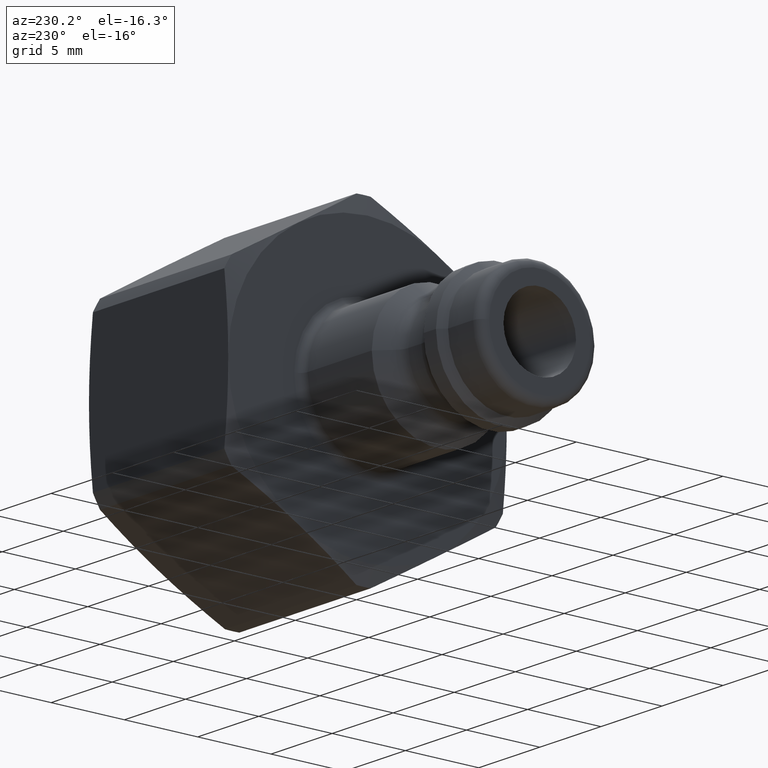
[diagram: clean part render]
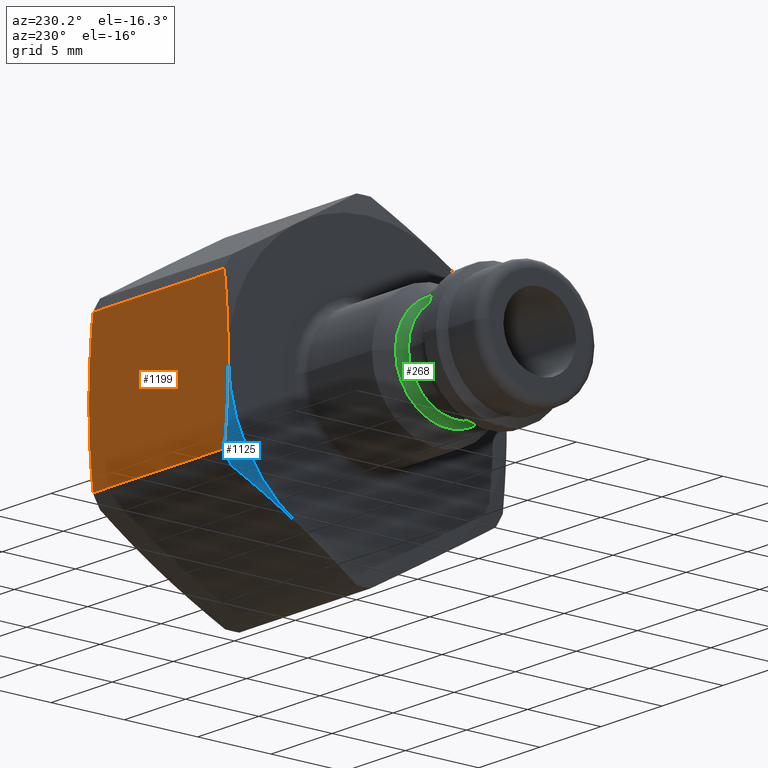
[diagram: same view with three faces highlighted in distinct colors, each labeled with its STEP entity id]
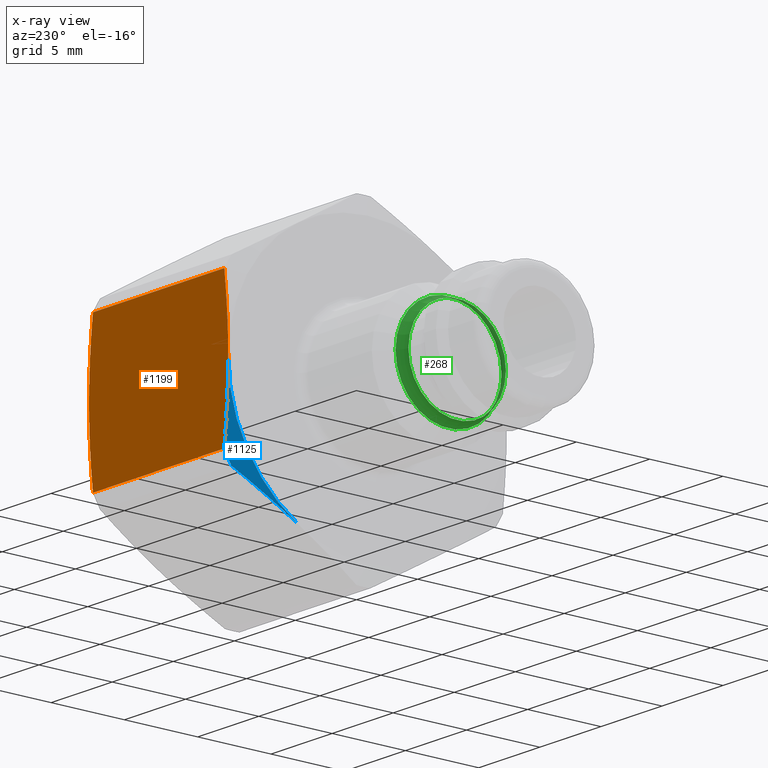
[diagram: x-ray of the same camera — body ghosted, the three highlighted faces saturated]
A machine part, auxiliary view with three faces highlighted in distinct colors.
The next image is the same camera in x-ray (body ghosted, the three faces saturated) — at least one of them is partly hidden behind the body in this view.
Their STEP definitions:

[orange] entity #1199 — the highlighted planar face has unit normal (0, -1, 0).
#101=CARTESIAN_POINT('',(25.500000000000004,9.5,0.0));
#102=VERTEX_POINT('',#101);
#402=CARTESIAN_POINT('',(14.100000000000001,9.5,0.0));
#403=VERTEX_POINT('',#402);
#869=CARTESIAN_POINT('',(25.178460969082657,9.500000000000002,4.923413450036466));
#870=VERTEX_POINT('',#869);
#871=CARTESIAN_POINT('',(25.5,9.500000000000002,0.0));
#872=CARTESIAN_POINT('',(25.5,9.500000000000002,2.315466721551811));
#873=CARTESIAN_POINT('',(25.178460969082657,9.500000000000002,4.923413450036447));
#881=(BOUNDED_CURVE()B_SPLINE_CURVE(2,(#871,#872,#873),.UNSPECIFIED.,.F.,.U.)B_SPLINE_CURVE_WITH_KNOTS((3,3),(0.493628243022412,0.987256486044824),.UNSPECIFIED.)CURVE()GEOMETRIC_REPRESENTATION_ITEM()RATIONAL_B_SPLINE_CURVE((1.0,1.031095482841895,1.0))REPRESENTATION_ITEM(''));
#882=EDGE_CURVE('',#102,#870,#881,.T.);
#954=CARTESIAN_POINT('',(25.178460969082657,9.500000000000002,-4.923413450036466));
#955=VERTEX_POINT('',#954);
#963=CARTESIAN_POINT('',(25.178460969082657,9.500000000000002,-4.923413450036447));
#964=CARTESIAN_POINT('',(25.5,9.500000000000002,-2.315466721551811));
#965=CARTESIAN_POINT('',(25.5,9.500000000000002,0.0));
#973=(BOUNDED_CURVE()B_SPLINE_CURVE(2,(#963,#964,#965),.UNSPECIFIED.,.F.,.U.)B_SPLINE_CURVE_WITH_KNOTS((3,3),(0.0,0.493628243022412),.UNSPECIFIED.)CURVE()GEOMETRIC_REPRESENTATION_ITEM()RATIONAL_B_SPLINE_CURVE((1.0,1.031095482841895,1.0))REPRESENTATION_ITEM(''));
#974=EDGE_CURVE('',#955,#102,#973,.T.);
#1004=CARTESIAN_POINT('',(14.421539030917344,9.5,-4.923413450036465));
#1005=VERTEX_POINT('',#1004);
#1013=CARTESIAN_POINT('',(14.421539030917344,9.5,-4.923413450036463));
#1014=DIRECTION('',(1.0,0.0,0.0));
#1015=VECTOR('',#1014,10.756921938165313);
#1016=LINE('',#1013,#1015);
#1017=EDGE_CURVE('',#1005,#955,#1016,.T.);
#1030=CARTESIAN_POINT('',(14.421539030917344,9.5,4.923413450036465));
#1031=VERTEX_POINT('',#1030);
#1032=CARTESIAN_POINT('',(25.178460969082657,9.5,4.923413450036463));
#1033=DIRECTION('',(-1.0,0.0,0.0));
#1034=VECTOR('',#1033,10.756921938165313);
#1035=LINE('',#1032,#1034);
#1036=EDGE_CURVE('',#870,#1031,#1035,.T.);
#1109=CARTESIAN_POINT('',(14.100000000000001,9.5,0.0));
#1110=CARTESIAN_POINT('',(14.1,9.5,-2.315466721551818));
#1111=CARTESIAN_POINT('',(14.421539030917348,9.5,-4.923413450036457));
#1119=(BOUNDED_CURVE()B_SPLINE_CURVE(2,(#1109,#1110,#1111),.UNSPECIFIED.,.F.,.U.)B_SPLINE_CURVE_WITH_KNOTS((3,3),(0.493628243022413,0.987256486044826),.UNSPECIFIED.)CURVE()GEOMETRIC_REPRESENTATION_ITEM()RATIONAL_B_SPLINE_CURVE((1.0,1.031095482841844,1.0))REPRESENTATION_ITEM(''));
#1120=EDGE_CURVE('',#403,#1005,#1119,.T.);
#1133=CARTESIAN_POINT('',(14.421539030917348,9.5,4.923413450036457));
#1134=CARTESIAN_POINT('',(14.100000000000003,9.5,2.315466721551818));
#1135=CARTESIAN_POINT('',(14.100000000000001,9.5,0.0));
#1143=(BOUNDED_CURVE()B_SPLINE_CURVE(2,(#1133,#1134,#1135),.UNSPECIFIED.,.F.,.U.)B_SPLINE_CURVE_WITH_KNOTS((3,3),(0.0,0.493628243022413),.UNSPECIFIED.)CURVE()GEOMETRIC_REPRESENTATION_ITEM()RATIONAL_B_SPLINE_CURVE((1.0,1.031095482841844,1.0))REPRESENTATION_ITEM(''));
#1144=EDGE_CURVE('',#1031,#403,#1143,.T.);
#1186=CARTESIAN_POINT('',(27.350283426595773,9.500000000000002,0.0));
#1187=DIRECTION('',(0.0,-1.0,0.0));
#1188=DIRECTION('',(0.0,0.0,-1.0));
#1189=AXIS2_PLACEMENT_3D('',#1186,#1187,#1188);
#1190=PLANE('',#1189);
#1191=ORIENTED_EDGE('',*,*,#1144,.F.);
#1192=ORIENTED_EDGE('',*,*,#1036,.F.);
#1193=ORIENTED_EDGE('',*,*,#882,.F.);
#1194=ORIENTED_EDGE('',*,*,#974,.F.);
#1195=ORIENTED_EDGE('',*,*,#1017,.F.);
#1196=ORIENTED_EDGE('',*,*,#1120,.F.);
#1197=EDGE_LOOP('',(#1191,#1192,#1193,#1194,#1195,#1196));
#1198=FACE_OUTER_BOUND('',#1197,.T.);
#1199=ADVANCED_FACE('',(#1198),#1190,.F.);

[blue] entity #1125 — the highlighted conical surface has half-angle 75 deg.
#402=CARTESIAN_POINT('',(14.100000000000001,9.5,0.0));
#403=VERTEX_POINT('',#402);
#413=CARTESIAN_POINT('',(14.1,4.749999999999993,-8.227241335952172));
#414=VERTEX_POINT('',#413);
#415=CARTESIAN_POINT('',(14.100000000000001,0.0,0.0));
#416=DIRECTION('',(1.0,0.0,0.0));
#417=DIRECTION('',(0.0,1.0,0.0));
#418=AXIS2_PLACEMENT_3D('',#415,#416,#417);
#419=CIRCLE('',#418,9.5);
#420=EDGE_CURVE('',#414,#403,#419,.T.);
#467=CARTESIAN_POINT('',(14.421539030917344,9.013801121065562,-5.765534610933942));
#468=VERTEX_POINT('',#467);
#469=CARTESIAN_POINT('',(14.421539030917348,9.013801121065551,-5.765534610933949));
#470=CARTESIAN_POINT('',(14.100000000000009,6.75525300248137,-7.069507975176247));
#471=CARTESIAN_POINT('',(14.100000000000003,4.749999999999993,-8.227241335952172));
#479=(BOUNDED_CURVE()B_SPLINE_CURVE(2,(#469,#470,#471),.UNSPECIFIED.,.F.,.U.)B_SPLINE_CURVE_WITH_KNOTS((3,3),(0.0,0.493628243022413),.UNSPECIFIED.)CURVE()GEOMETRIC_REPRESENTATION_ITEM()RATIONAL_B_SPLINE_CURVE((1.0,1.031095482841852,1.0))REPRESENTATION_ITEM(''));
#480=EDGE_CURVE('',#468,#414,#479,.T.);
#1004=CARTESIAN_POINT('',(14.421539030917344,9.5,-4.923413450036465));
#1005=VERTEX_POINT('',#1004);
#1006=CARTESIAN_POINT('',(14.421539030917348,0.0,0.0));
#1007=DIRECTION('',(1.0,0.0,0.0));
#1008=DIRECTION('',(0.0,1.0,0.0));
#1009=AXIS2_PLACEMENT_3D('',#1006,#1007,#1008);
#1010=CIRCLE('',#1009,10.699999999999999);
#1011=EDGE_CURVE('',#468,#1005,#1010,.T.);
#1102=CARTESIAN_POINT('',(14.260769515458676,0.0,0.0));
#1103=DIRECTION('',(1.0,0.0,0.0));
#1104=DIRECTION('',(0.0,1.0,0.0));
#1105=AXIS2_PLACEMENT_3D('',#1102,#1103,#1104);
#1106=CONICAL_SURFACE('',#1105,10.1,75.000000000000043);
#1107=ORIENTED_EDGE('',*,*,#480,.T.);
#1108=ORIENTED_EDGE('',*,*,#420,.T.);
#1109=CARTESIAN_POINT('',(14.100000000000001,9.5,0.0));
#1110=CARTESIAN_POINT('',(14.1,9.5,-2.315466721551818));
#1111=CARTESIAN_POINT('',(14.421539030917348,9.5,-4.923413450036457));
#1119=(BOUNDED_CURVE()B_SPLINE_CURVE(2,(#1109,#1110,#1111),.UNSPECIFIED.,.F.,.U.)B_SPLINE_CURVE_WITH_KNOTS((3,3),(0.493628243022413,0.987256486044826),.UNSPECIFIED.)CURVE()GEOMETRIC_REPRESENTATION_ITEM()RATIONAL_B_SPLINE_CURVE((1.0,1.031095482841844,1.0))REPRESENTATION_ITEM(''));
#1120=EDGE_CURVE('',#403,#1005,#1119,.T.);
#1121=ORIENTED_EDGE('',*,*,#1120,.T.);
#1122=ORIENTED_EDGE('',*,*,#1011,.F.);
#1123=EDGE_LOOP('',(#1107,#1108,#1121,#1122));
#1124=FACE_OUTER_BOUND('',#1123,.T.);
#1125=ADVANCED_FACE('',(#1124),#1106,.T.);

[green] entity #268 — the highlighted toroidal blend (fillet) surface has major radius 4.325 mm and minor (blend) radius 1 mm.
#214=CARTESIAN_POINT('',(6.760786437626905,3.325,0.0));
#215=VERTEX_POINT('',#214);
#216=CARTESIAN_POINT('',(6.760786437626905,0.0,0.0));
#217=DIRECTION('',(1.0,0.0,0.0));
#218=DIRECTION('',(0.0,-1.0,0.0));
#219=AXIS2_PLACEMENT_3D('',#216,#217,#218);
#220=CIRCLE('',#219,3.325);
#221=EDGE_CURVE('',#215,#215,#220,.T.);
#249=CARTESIAN_POINT('',(6.760786437626905,0.0,0.0));
#250=DIRECTION('',(1.0,0.0,0.0));
#251=DIRECTION('',(0.0,0.0,-1.0));
#252=AXIS2_PLACEMENT_3D('',#249,#250,#251);
#253=TOROIDAL_SURFACE('',#252,4.325,1.0);
#254=ORIENTED_EDGE('',*,*,#221,.T.);
#255=EDGE_LOOP('',(#254));
#256=FACE_OUTER_BOUND('',#255,.T.);
#257=CARTESIAN_POINT('',(7.467893218813453,3.617893218813453,-8.861283E-016));
#258=VERTEX_POINT('',#257);
#259=CARTESIAN_POINT('',(7.467893218813453,0.0,-4.430641E-016));
#260=DIRECTION('',(-1.0,0.0,0.0));
#261=DIRECTION('',(0.0,-1.0,0.0));
#262=AXIS2_PLACEMENT_3D('',#259,#260,#261);
#263=CIRCLE('',#262,3.617893218813453);
#264=EDGE_CURVE('',#258,#258,#263,.T.);
#265=ORIENTED_EDGE('',*,*,#264,.T.);
#266=EDGE_LOOP('',(#265));
#267=FACE_BOUND('',#266,.T.);
#268=ADVANCED_FACE('',(#256,#267),#253,.F.);